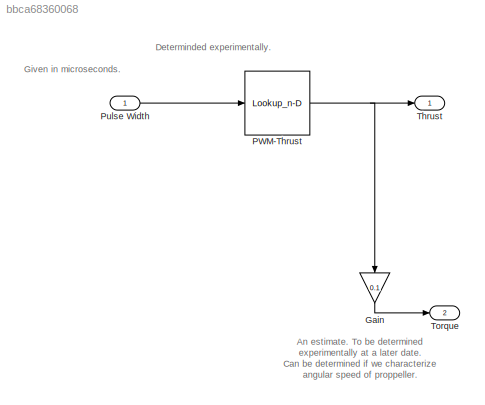
MODEL slx_bbca68360068
KIND model
CONFIG AbsTol = auto
CONFIG EnableMultiTasking = off
CONFIG FixedStep = auto
CONFIG MaxStep = auto
CONFIG MinStep = auto
CONFIG RelTol = 1e-3
CONFIG SampleTimeConstraint = Unconstrained
CONFIG Solver = VariableStepAuto
CONFIG SolverName = VariableStepAuto
CONFIG StartTime = 0.0
CONFIG StopTime = 10.0
WORKSPACE source: MAT-file member
WORKSPACE MCOS: class17 (value not decoded)
BLOCK [Gain] Gain
  Gain = 0.1
  OutDataTypeStr = Inherit: Inherit via internal rule
  ParamDataTypeStr = Inherit: Inherit via internal rule
  SaturateOnIntegerOverflow = off
BLOCK [Lookup_n-D] PWM-Thrust 
  BreakpointsForDimension1 = [-5:5]
  DataSpecification = Lookup table object
  InputSameDT = off
  InternalRulePriority = Speed
  LookupTableObject = thrust_table
  NumberOfTableDimensions = 1
  OutMin = [0]
  Ports = [1, 1]
  RndMeth = Simplest
  Table = tanh([-5:5])
BLOCK [Inport] Pulse Width 
  IconDisplay = Port number
BLOCK [Outport] Thrust 
  IconDisplay = Port number
BLOCK [Outport] Torque
  IconDisplay = Port number
  Port = 2
ANNOTATION (root): An estimate. To be determined experimentally at a later date. Can be determined if we characterize angular speed of proppeller.
ANNOTATION (root): Determinded experimentally.
ANNOTATION (root): Given in microseconds.
LINE Gain:1 -> Torque:1
NET PWM-Thrust :1 -> Gain:1, Thrust :1
LINE Pulse Width :1 -> PWM-Thrust :1
note: NET lines group one-source signal fan-out (src -> all destinations, sorted); 1:1 wires keep LINE
